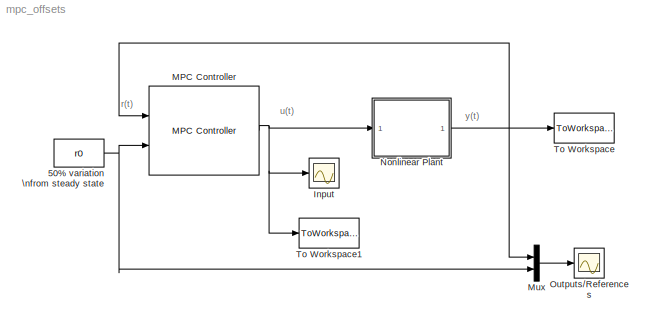
MODEL mpc_offsets
KIND model
BLOCK [Constant] 50% variation \nfrom  steady state
  Value = r0
BLOCK [Scope] Input
  DataFormat = Structure
  NumInputPorts = 1
  Ports = [1]
  TimeRange = 10
  YMax = 2
  YMin = -8
  ZoomMode = yonly
BLOCK [Reference] MPC Controller  REF=mpclib/MPC Controller  (lib defined in mdl_ae329e0e0455)
  Ports = [2, 1]
  ShowPortLabels = on
  SourceBlock = mpclib/MPC Controller
  SourceType = MPC
  from_project = off
  md_from_ws = off
  md_inport = off
  md_preview = on
  md_signal_name = []
  mpcobj = mpc_controller
  n_mv = 0
  project_file = MPCtask.mat
  ref_from_ws = off
  ref_preview = on
  ref_signal_name = []
  x0 = []
BLOCK [Mux] Mux
  DisplayOption = bar
  Inputs = 2
  Ports = [2, 1]
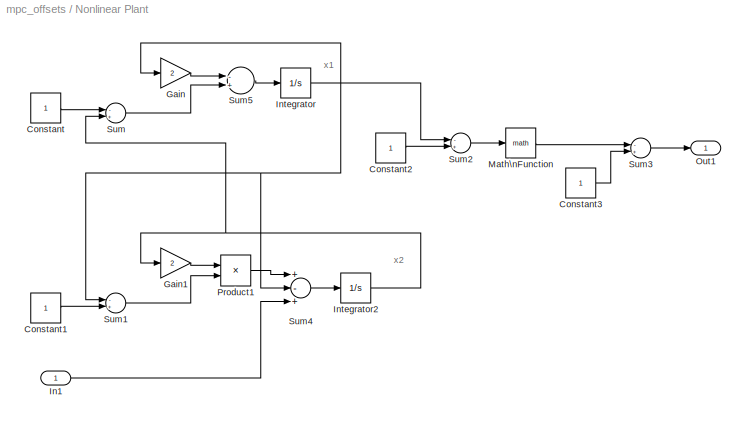
BLOCK [SubSystem] Nonlinear Plant
  MinAlgLoopOccurrences = off
  Ports = [1, 1]
  PropExecContextAcrossSSBoundary = on
  RTWSystemCode = Auto
  TreatAsAtomicUnit = off
BLOCK [Constant] Nonlinear Plant/Constant
BLOCK [Constant] Nonlinear Plant/Constant1
BLOCK [Constant] Nonlinear Plant/Constant2
BLOCK [Constant] Nonlinear Plant/Constant3
BLOCK [Gain] Nonlinear Plant/Gain
  Gain = 2
BLOCK [Gain] Nonlinear Plant/Gain1
  Gain = 2
BLOCK [Inport] Nonlinear Plant/In1
  IconDisplay = Port number
  LatchInput = off
BLOCK [Integrator] Nonlinear Plant/Integrator
  InitialCondition = x0(1)
  LowerSaturationLimit = -Inf
  Ports = [1, 1]
  UpperSaturationLimit = Inf
BLOCK [Integrator] Nonlinear Plant/Integrator2
  InitialCondition = x0(2)
  LowerSaturationLimit = -Inf
  Ports = [1, 1]
  UpperSaturationLimit = Inf
BLOCK [Math] Nonlinear Plant/Math\nFunction
  Ports = [1, 1]
BLOCK [Outport] Nonlinear Plant/Out1
  BusOutputAsStruct = off
  IconDisplay = Port number
BLOCK [Product] Nonlinear Plant/Product1
  Ports = [2, 1]
  RndMeth = Floor
BLOCK [Sum] Nonlinear Plant/Sum
  Inputs = -+
  Ports = [2, 1]
BLOCK [Sum] Nonlinear Plant/Sum1
  Inputs = -+
  Ports = [2, 1]
BLOCK [Sum] Nonlinear Plant/Sum2
  Inputs = -+
  Ports = [2, 1]
BLOCK [Sum] Nonlinear Plant/Sum3
  Inputs = -+
  Ports = [2, 1]
BLOCK [Sum] Nonlinear Plant/Sum4
  Inputs = +-+
  Ports = [3, 1]
BLOCK [Sum] Nonlinear Plant/Sum5
  Inputs = -+
  Ports = [2, 1]
BLOCK [Scope] Outputs//References
  DataFormat = Structure
  NumInputPorts = 1
  Ports = [1]
  TimeRange = 10
  YMax = -1.5
  YMin = -3
BLOCK [ToWorkspace] To Workspace
  MaxDataPoints = Inf
  SampleTime = -1
  SaveFormat = Structure With Time
  VariableName = y
BLOCK [ToWorkspace] To Workspace1
  MaxDataPoints = Inf
  SampleTime = -1
  SaveFormat = Structure With Time
  VariableName = u
ANNOTATION (root): r(t)
ANNOTATION (root): u(t)
ANNOTATION (root): y(t)
ANNOTATION Nonlinear Plant: x1
ANNOTATION Nonlinear Plant: x2
NET 50% variation \nfrom  steady state:1 -> MPC Controller:2, Mux:2
NET MPC Controller:1 -> Input:1, Nonlinear Plant:1, To Workspace1:1
LINE Mux:1 -> Outputs//References:1
LINE Nonlinear Plant/Constant1:1 -> Nonlinear Plant/Sum1:2
LINE Nonlinear Plant/Constant2:1 -> Nonlinear Plant/Sum2:2
LINE Nonlinear Plant/Constant3:1 -> Nonlinear Plant/Sum3:2
LINE Nonlinear Plant/Constant:1 -> Nonlinear Plant/Sum:1
LINE Nonlinear Plant/Gain1:1 -> Nonlinear Plant/Product1:1
LINE Nonlinear Plant/Gain:1 -> Nonlinear Plant/Sum5:1
LINE Nonlinear Plant/In1:1 -> Nonlinear Plant/Sum4:3
NET Nonlinear Plant/Integrator2:1 -> Nonlinear Plant/Gain1:1, Nonlinear Plant/Sum:2
NET Nonlinear Plant/Integrator:1 -> Nonlinear Plant/Gain:1, Nonlinear Plant/Sum1:1, Nonlinear Plant/Sum2:1, Nonlinear Plant/Sum4:2
LINE Nonlinear Plant/Math\nFunction:1 -> Nonlinear Plant/Sum3:1
LINE Nonlinear Plant/Product1:1 -> Nonlinear Plant/Sum4:1
LINE Nonlinear Plant/Sum1:1 -> Nonlinear Plant/Product1:2
LINE Nonlinear Plant/Sum2:1 -> Nonlinear Plant/Math\nFunction:1
LINE Nonlinear Plant/Sum3:1 -> Nonlinear Plant/Out1:1
LINE Nonlinear Plant/Sum4:1 -> Nonlinear Plant/Integrator2:1
LINE Nonlinear Plant/Sum5:1 -> Nonlinear Plant/Integrator:1
LINE Nonlinear Plant/Sum:1 -> Nonlinear Plant/Sum5:2
NET Nonlinear Plant:1 -> MPC Controller:1, Mux:1, To Workspace:1
note: NET lines group one-source signal fan-out (src -> all destinations, sorted); 1:1 wires keep LINE
